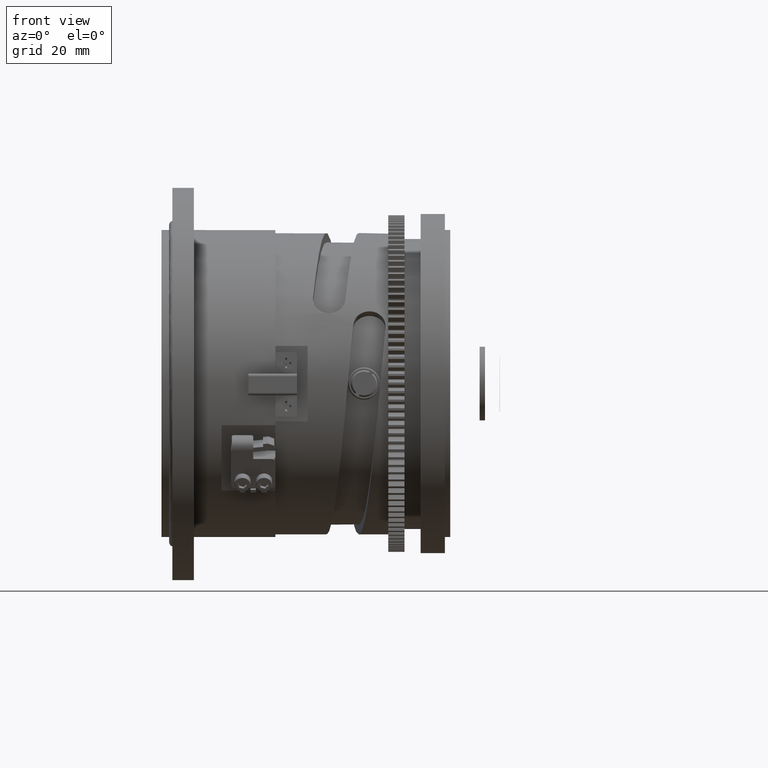
[diagram: clean part render]
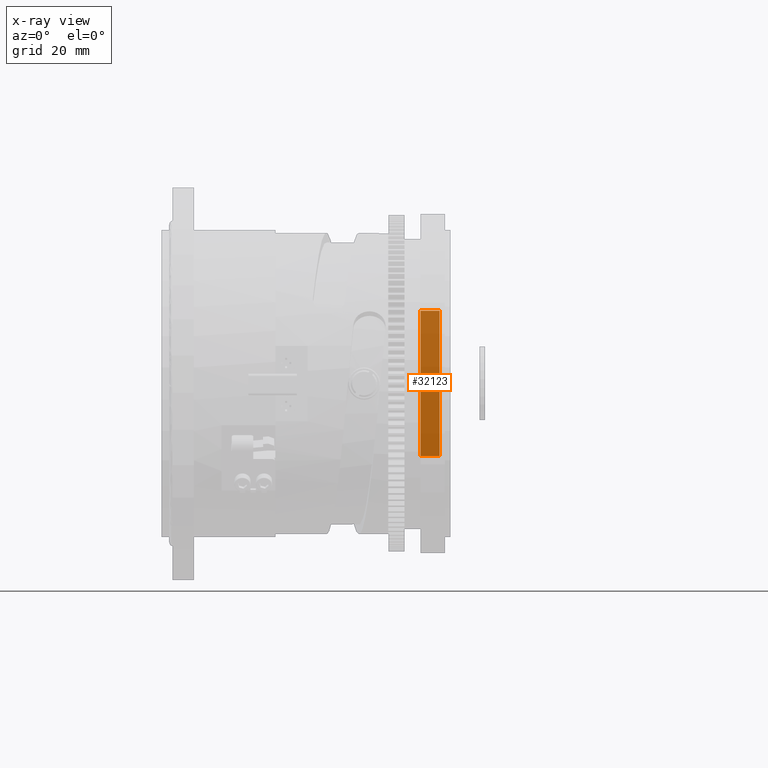
[diagram: x-ray — body ghosted, one internal face saturated and labeled with its STEP entity id]
A machine part, front view, then the same camera in x-ray: the body is ghosted and one INTERNAL B-rep face — a face not visible from any outside direction — is saturated and labeled: STEP entity #32123.
In plain terms, the highlighted planar face has unit normal (0, 1, 0).
Its self-contained STEP definition (entity closure, byte-faithful):
#1821 = LINE ( 'NONE', #32707, #50739 ) ;
#3505 = ORIENTED_EDGE ( 'NONE', *, *, #5156, .F. ) ;
#5156 = EDGE_CURVE ( 'NONE', #23064, #6292, #1821, .T. ) ;
#6292 = VERTEX_POINT ( 'NONE', #39641 ) ;
#6806 = CARTESIAN_POINT ( 'NONE',  ( 45.94000000000000483, 41.49999999999999289, -13.49999999999999822 ) ) ;
#9598 = VERTEX_POINT ( 'NONE', #44758 ) ;
#10465 = DIRECTION ( 'NONE',  ( 0.000000000000000000, 0.000000000000000000, 1.000000000000000000 ) ) ;
#14581 = DIRECTION ( 'NONE',  ( -0.000000000000000000, 0.000000000000000000, -1.000000000000000000 ) ) ;
#15352 = VECTOR ( 'NONE', #23992, 1000.000000000000000 ) ;
#17467 = VECTOR ( 'NONE', #14581, 1000.000000000000000 ) ;
#19497 = PLANE ( 'NONE',  #46692 ) ;
#23064 = VERTEX_POINT ( 'NONE', #6806 ) ;
#23402 = EDGE_CURVE ( 'NONE', #52394, #9598, #28705, .T. ) ;
#23992 = DIRECTION ( 'NONE',  ( -1.000000000000000000, -0.000000000000000000, -0.000000000000000000 ) ) ;
#26198 = CARTESIAN_POINT ( 'NONE',  ( 49.43999999999999773, 41.49999999999999289, -13.50000000000000000 ) ) ;
#28705 = LINE ( 'NONE', #37397, #17467 ) ;
#31781 = ORIENTED_EDGE ( 'NONE', *, *, #41739, .F. ) ;
#32123 = ADVANCED_FACE ( 'NONE', ( #32490 ), #19497, .F. ) ;
#32490 = FACE_OUTER_BOUND ( 'NONE', #47285, .T. ) ;
#32707 = CARTESIAN_POINT ( 'NONE',  ( 45.94000000000000483, 41.49999999999999289, 0.000000000000000000 ) ) ;
#32767 = DIRECTION ( 'NONE',  ( 0.000000000000000000, 1.000000000000000000, 0.000000000000000000 ) ) ;
#35173 = EDGE_CURVE ( 'NONE', #52394, #6292, #41389, .T. ) ;
#37132 = CARTESIAN_POINT ( 'NONE',  ( 49.43999999999999773, 41.49999999999999289, -13.50000000000000000 ) ) ;
#37397 = CARTESIAN_POINT ( 'NONE',  ( 49.43999999999999773, 41.49999999999999289, -13.50000000000000000 ) ) ;
#39641 = CARTESIAN_POINT ( 'NONE',  ( 45.94000000000000483, 41.49999999999999289, 13.50000000000000000 ) ) ;
#41389 = LINE ( 'NONE', #50052, #15352 ) ;
#41550 = VECTOR ( 'NONE', #47372, 1000.000000000000000 ) ;
#41739 = EDGE_CURVE ( 'NONE', #9598, #23064, #43880, .T. ) ;
#42546 = CARTESIAN_POINT ( 'NONE',  ( 49.43999999999999773, 41.49999999999999289, 13.49999999999999822 ) ) ;
#43880 = LINE ( 'NONE', #26198, #41550 ) ;
#44758 = CARTESIAN_POINT ( 'NONE',  ( 49.43999999999999773, 41.49999999999999289, -13.50000000000000000 ) ) ;
#46692 = AXIS2_PLACEMENT_3D ( 'NONE', #37132, #32767, #50434 ) ;
#47285 = EDGE_LOOP ( 'NONE', ( #31781, #54837, #49930, #3505 ) ) ;
#47372 = DIRECTION ( 'NONE',  ( -1.000000000000000000, -0.000000000000000000, 0.000000000000000000 ) ) ;
#49930 = ORIENTED_EDGE ( 'NONE', *, *, #35173, .T. ) ;
#50052 = CARTESIAN_POINT ( 'NONE',  ( 49.43999999999999773, 41.49999999999999289, 13.50000000000000000 ) ) ;
#50434 = DIRECTION ( 'NONE',  ( 0.000000000000000000, -0.000000000000000000, 1.000000000000000000 ) ) ;
#50739 = VECTOR ( 'NONE', #10465, 1000.000000000000000 ) ;
#52394 = VERTEX_POINT ( 'NONE', #42546 ) ;
#54837 = ORIENTED_EDGE ( 'NONE', *, *, #23402, .F. ) ;